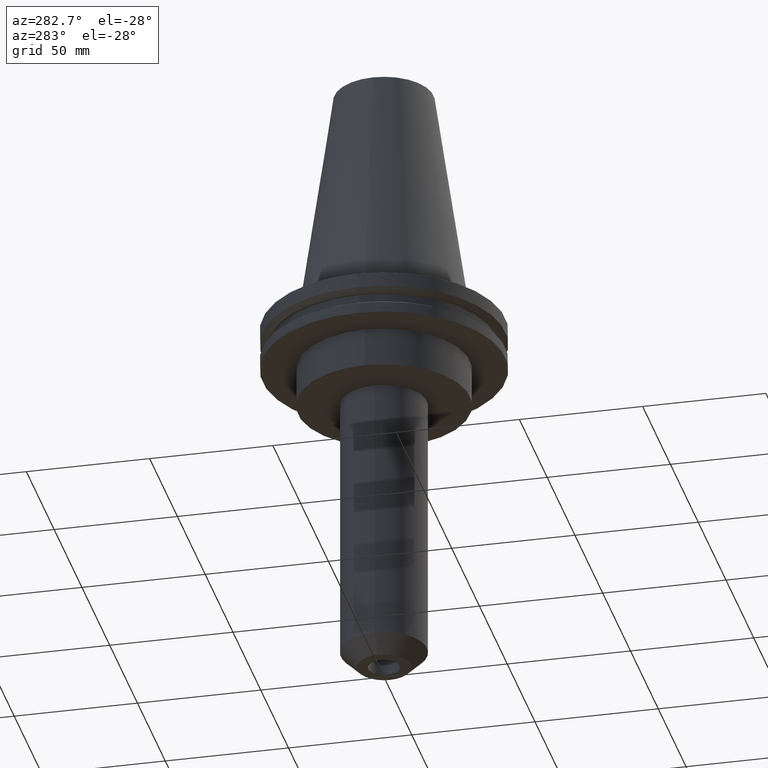
[diagram: clean part render]
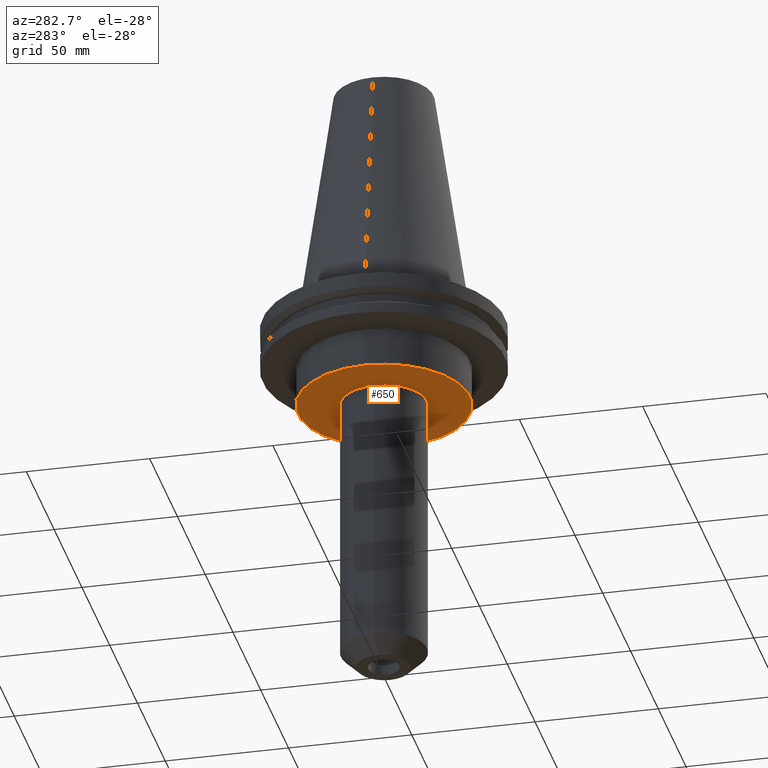
[diagram: same view with one face highlighted and labeled with its STEP entity id]
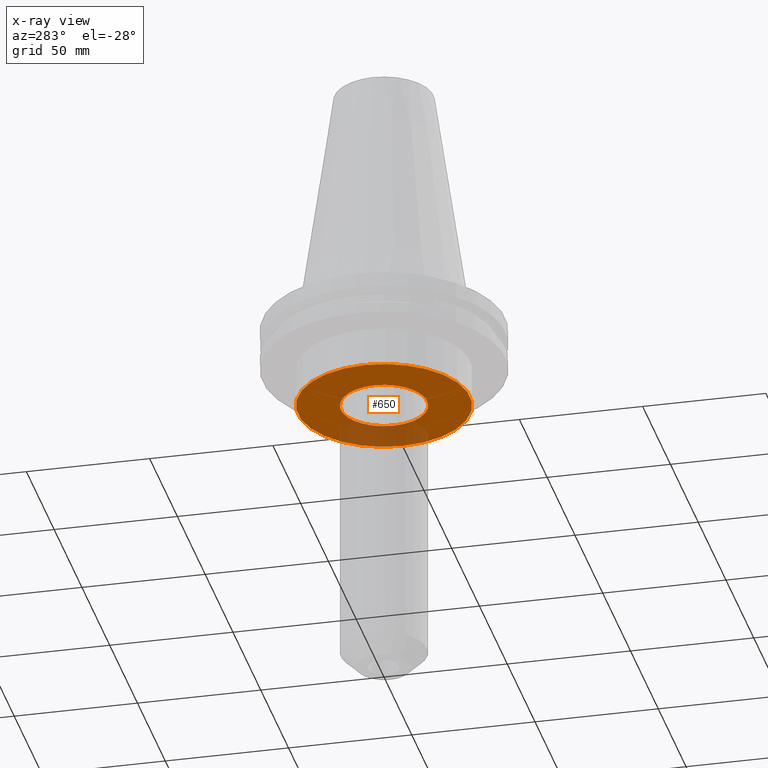
[diagram: x-ray of the same camera — body ghosted, the highlighted face saturated]
A machine part, auxiliary view. The second image highlights one B-rep face of the part: STEP entity #650.
The next image is the same camera in x-ray: the body ghosted, the highlighted face saturated — about 20% of this face is hidden behind the body in this view.
In plain terms, the highlighted planar face has unit normal (0, -0, 1).
Its self-contained STEP definition (entity closure, byte-faithful):
#10 = AXIS2_PLACEMENT_3D ( 'NONE', #489, #363, #624 ) ;
#24 = EDGE_CURVE ( 'NONE', #264, #662, #538, .T. ) ;
#34 = PLANE ( 'NONE',  #854 ) ;
#46 = CARTESIAN_POINT ( 'NONE',  ( 0.000000000000000000, 0.000000000000000000, -35.04999999999999716 ) ) ;
#65 = DIRECTION ( 'NONE',  ( 1.000000000000000000, 0.000000000000000000, 0.000000000000000000 ) ) ;
#108 = DIRECTION ( 'NONE',  ( 1.000000000000000000, 0.000000000000000000, 0.000000000000000000 ) ) ;
#129 = CIRCLE ( 'NONE', #161, 34.92499999999999716 ) ;
#160 = VERTEX_POINT ( 'NONE', #172 ) ;
#161 = AXIS2_PLACEMENT_3D ( 'NONE', #711, #323, #65 ) ;
#164 = DIRECTION ( 'NONE',  ( 0.000000000000000000, -0.000000000000000000, 1.000000000000000000 ) ) ;
#169 = FACE_BOUND ( 'NONE', #346, .T. ) ;
#172 = CARTESIAN_POINT ( 'NONE',  ( -17.46499999999999986, 2.138845634710852534E-15, -35.04999999999999716 ) ) ;
#176 = CIRCLE ( 'NONE', #202, 17.46499999999999986 ) ;
#178 = EDGE_CURVE ( 'NONE', #160, #475, #176, .T. ) ;
#202 = AXIS2_PLACEMENT_3D ( 'NONE', #46, #566, #513 ) ;
#229 = CARTESIAN_POINT ( 'NONE',  ( 0.000000000000000000, 34.92499999999999716, -35.04999999999999716 ) ) ;
#264 = VERTEX_POINT ( 'NONE', #663 ) ;
#275 = ORIENTED_EDGE ( 'NONE', *, *, #665, .F. ) ;
#279 = CARTESIAN_POINT ( 'NONE',  ( 17.46499999999999986, 0.000000000000000000, -35.04999999999999716 ) ) ;
#302 = EDGE_CURVE ( 'NONE', #475, #160, #781, .T. ) ;
#323 = DIRECTION ( 'NONE',  ( -0.000000000000000000, -0.000000000000000000, 1.000000000000000000 ) ) ;
#331 = CARTESIAN_POINT ( 'NONE',  ( 34.92499999999999716, 0.000000000000000000, -35.04999999999999716 ) ) ;
#334 = DIRECTION ( 'NONE',  ( 0.000000000000000000, 0.000000000000000000, -1.000000000000000000 ) ) ;
#346 = EDGE_LOOP ( 'NONE', ( #463, #817 ) ) ;
#363 = DIRECTION ( 'NONE',  ( -0.000000000000000000, -0.000000000000000000, 1.000000000000000000 ) ) ;
#415 = AXIS2_PLACEMENT_3D ( 'NONE', #782, #334, #593 ) ;
#463 = ORIENTED_EDGE ( 'NONE', *, *, #302, .F. ) ;
#475 = VERTEX_POINT ( 'NONE', #279 ) ;
#489 = CARTESIAN_POINT ( 'NONE',  ( 0.000000000000000000, 0.000000000000000000, -35.04999999999999716 ) ) ;
#513 = DIRECTION ( 'NONE',  ( 1.000000000000000000, 0.000000000000000000, 0.000000000000000000 ) ) ;
#538 = CIRCLE ( 'NONE', #10, 34.92499999999999716 ) ;
#566 = DIRECTION ( 'NONE',  ( 0.000000000000000000, 0.000000000000000000, -1.000000000000000000 ) ) ;
#580 = EDGE_LOOP ( 'NONE', ( #275, #799 ) ) ;
#593 = DIRECTION ( 'NONE',  ( 1.000000000000000000, 0.000000000000000000, 0.000000000000000000 ) ) ;
#624 = DIRECTION ( 'NONE',  ( 1.000000000000000000, 0.000000000000000000, 0.000000000000000000 ) ) ;
#650 = ADVANCED_FACE ( 'NONE', ( #699, #169 ), #34, .F. ) ;
#662 = VERTEX_POINT ( 'NONE', #331 ) ;
#663 = CARTESIAN_POINT ( 'NONE',  ( -34.92499999999999716, 4.277078946022130887E-15, -35.04999999999999716 ) ) ;
#665 = EDGE_CURVE ( 'NONE', #662, #264, #129, .T. ) ;
#699 = FACE_OUTER_BOUND ( 'NONE', #580, .T. ) ;
#711 = CARTESIAN_POINT ( 'NONE',  ( 0.000000000000000000, 0.000000000000000000, -35.04999999999999716 ) ) ;
#781 = CIRCLE ( 'NONE', #415, 17.46499999999999986 ) ;
#782 = CARTESIAN_POINT ( 'NONE',  ( 0.000000000000000000, 0.000000000000000000, -35.04999999999999716 ) ) ;
#799 = ORIENTED_EDGE ( 'NONE', *, *, #24, .F. ) ;
#817 = ORIENTED_EDGE ( 'NONE', *, *, #178, .F. ) ;
#854 = AXIS2_PLACEMENT_3D ( 'NONE', #229, #164, #108 ) ;